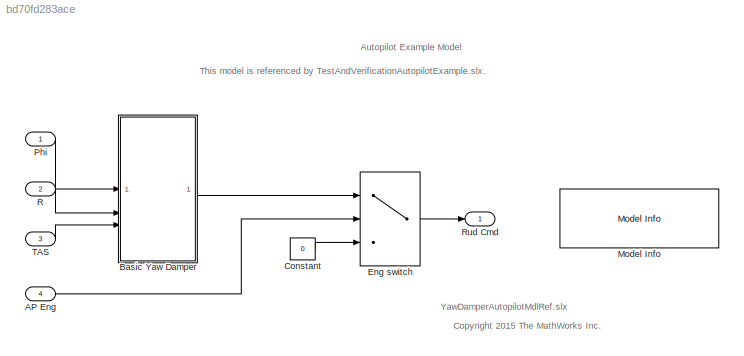
MODEL slx_bd70fd283ace
KIND model
CONFIG AbsTol = auto
CONFIG EnableMultiTasking = off
CONFIG FixedStep = 1/40
CONFIG MaxStep = auto
CONFIG MinStep = auto
CONFIG RelTol = 1e-3
CONFIG SampleTimeConstraint = Unconstrained
CONFIG SolverName = FixedStepDiscrete
CONFIG StartTime = 0.0
CONFIG StopTime = 25
WORKSPACE source: mxarray member
WORKSPACE rateGain: Simulink.Parameter (value not decoded)
BLOCK [Inport] AP Eng
  Interpolate = off
  OutDataTypeStr = boolean
  Port = 4
  PortDimensions = 1
  SampleTime = 1/40
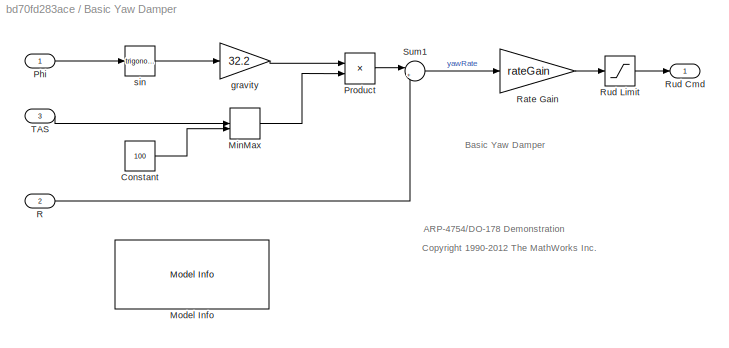
BLOCK [SubSystem] Basic Yaw Damper
  RTWSystemCode = Inline
  TreatAsAtomicUnit = on
BLOCK [Constant] Basic Yaw Damper/Constant
  Value = 100
BLOCK [MinMax] Basic Yaw Damper/MinMax
  Function = max
  Inputs = 2
BLOCK [Reference] Basic Yaw Damper/Model Info  REF=simulink/Model-Wide
Utilities/Model Info
  SourceBlock = simulink/Model-Wide\nUtilities/Model Info
  SourceType = CMBlock
BLOCK [Inport] Basic Yaw Damper/Phi 
BLOCK [Product] Basic Yaw Damper/Product
  Inputs = */
  RndMeth = Zero
BLOCK [Inport] Basic Yaw Damper/R
  Port = 2
BLOCK [Gain] Basic Yaw Damper/Rate Gain
  Gain = rateGain
BLOCK [Outport] Basic Yaw Damper/Rud Cmd
BLOCK [Saturate] Basic Yaw Damper/Rud Limit
  AttributesFormatString = %<LowerLimit> to %<UpperLimit> (deg)
  LowerLimit = -25
  UpperLimit = 25
BLOCK [Sum] Basic Yaw Damper/Sum1
  Inputs = |+-
BLOCK [Inport] Basic Yaw Damper/TAS
  Port = 3
BLOCK [Gain] Basic Yaw Damper/gravity
  Gain = 32.2
BLOCK [Trigonometry] Basic Yaw Damper/sin
  ApproximationMethod = CORDIC
BLOCK [Constant] Constant
  OutDataTypeStr = double
  Value = 0
BLOCK [Switch] Eng switch
  Criteria = u2 ~= 0
  InputSameDT = off
  SaturateOnIntegerOverflow = off
BLOCK [Reference] Model Info  REF=simulink/Model-Wide
Utilities/Model Info
  SourceBlock = simulink/Model-Wide\nUtilities/Model Info
  SourceType = CMBlock
BLOCK [Inport] Phi
  Interpolate = off
  OutDataTypeStr = double
  PortDimensions = 1
  SampleTime = 1/40
BLOCK [Inport] R
  Interpolate = off
  OutDataTypeStr = double
  Port = 2
  PortDimensions = 1
  SampleTime = 1/40
  SignalType = real
BLOCK [Outport] Rud Cmd
  OutDataTypeStr = double
  PortDimensions = 1
  SampleTime = 1/40
  SignalType = real
BLOCK [Inport] TAS
  Interpolate = off
  OutDataTypeStr = double
  Port = 3
  PortDimensions = 1
  SampleTime = 1/40
  SignalType = real
ANNOTATION (root): This model is referenced by TestAndVerificationAutopilotExample.slx.
ANNOTATION (root): Autopilot Example Model
ANNOTATION (root): <copyright redacted>
ANNOTATION (root): YawDamperAutopilotMdlRef.slx
ANNOTATION Basic Yaw Damper: ARP-4754/DO-178 Demonstration
ANNOTATION Basic Yaw Damper: Basic Yaw Damper
ANNOTATION Basic Yaw Damper: <copyright redacted>
LINE AP Eng:1 -> Eng switch:2
LINE Basic Yaw Damper/Constant:1 -> Basic Yaw Damper/MinMax:2
LINE Basic Yaw Damper/MinMax:1 -> Basic Yaw Damper/Product:2
LINE Basic Yaw Damper/Phi :1 -> Basic Yaw Damper/sin:1
LINE Basic Yaw Damper/Product:1 -> Basic Yaw Damper/Sum1:1
LINE Basic Yaw Damper/R:1 -> Basic Yaw Damper/Sum1:2
LINE Basic Yaw Damper/Rate Gain:1 -> Basic Yaw Damper/Rud Limit:1
LINE Basic Yaw Damper/Rud Limit:1 -> Basic Yaw Damper/Rud Cmd:1
LINE Basic Yaw Damper/Sum1:1 -> Basic Yaw Damper/Rate Gain:1
LINE Basic Yaw Damper/TAS:1 -> Basic Yaw Damper/MinMax:1
LINE Basic Yaw Damper/gravity:1 -> Basic Yaw Damper/Product:1
LINE Basic Yaw Damper/sin:1 -> Basic Yaw Damper/gravity:1
LINE Basic Yaw Damper:1 -> Eng switch:1
LINE Constant:1 -> Eng switch:3
LINE Eng switch:1 -> Rud Cmd:1
LINE Phi:1 -> Basic Yaw Damper:1
LINE R:1 -> Basic Yaw Damper:2
LINE TAS:1 -> Basic Yaw Damper:3
